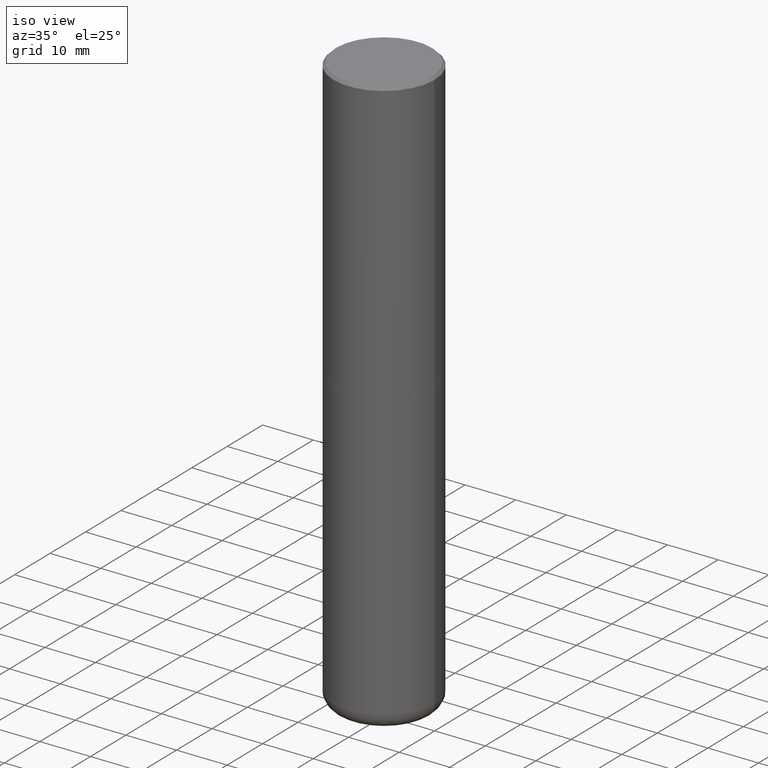
[diagram: clean part render]
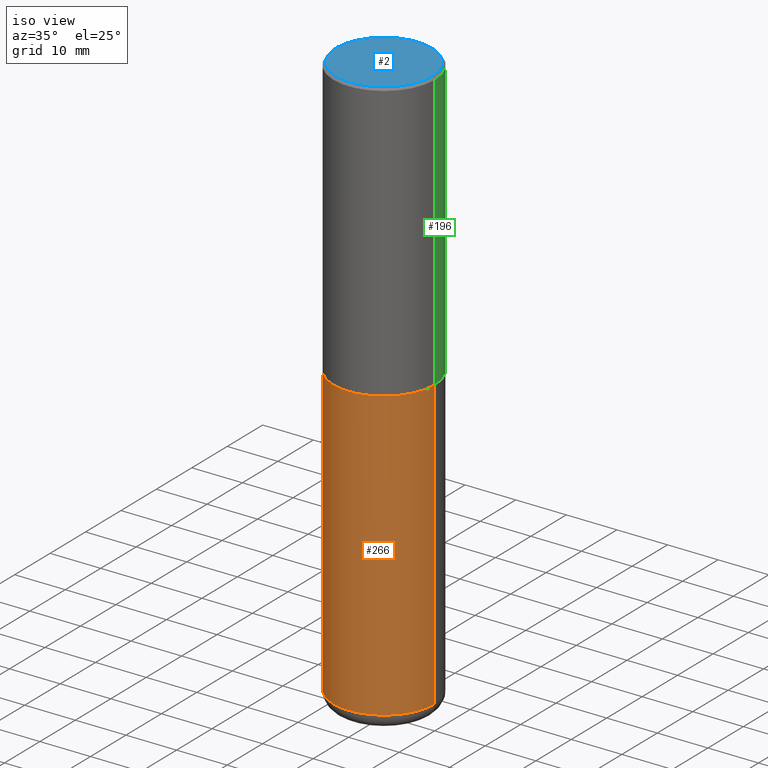
[diagram: same view with three faces highlighted in distinct colors, each labeled with its STEP entity id]
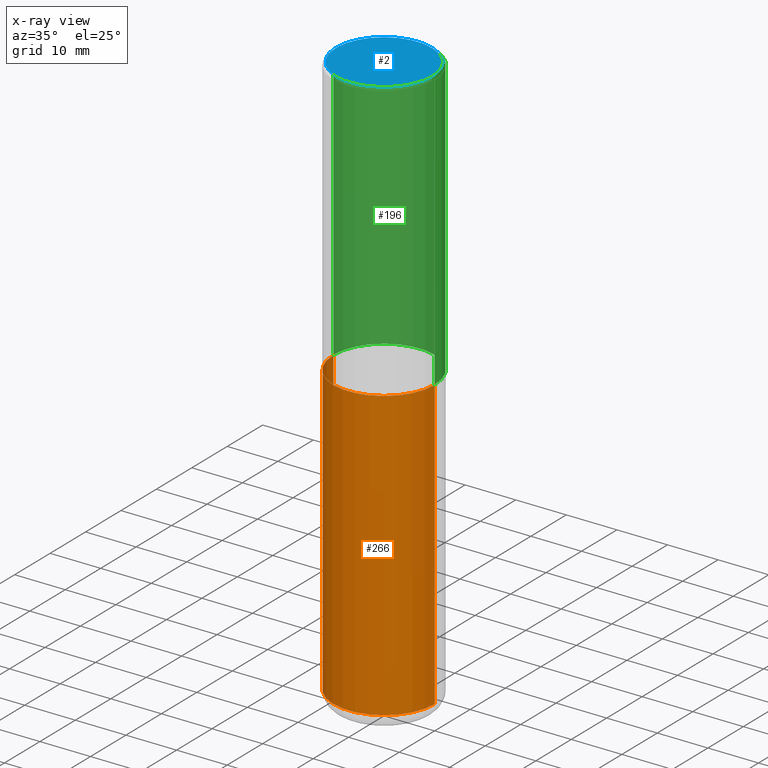
[diagram: x-ray of the same camera — body ghosted, the three highlighted faces saturated]
A machine part, iso view with three faces highlighted in distinct colors.
The next image is the same camera in x-ray (body ghosted, the three faces saturated) — at least one of them is partly hidden behind the body in this view.
Their STEP definitions:

[orange] entity #266 — the highlighted cylindrical surface (partial cylindrical patch) has radius 10 mm, axis along (-0, 0, 1).
#18 = DIRECTION ( 'NONE',  ( -2.445468806185136877E-29, 3.491481338843145188E-15, 1.000000000000000000 ) ) ;
#21 = FACE_OUTER_BOUND ( 'NONE', #300, .T. ) ;
#81 = CARTESIAN_POINT ( 'NONE',  ( 5.295418152913293224E-29, -7.560453691130945845E-15, -2.165399999999999547 ) ) ;
#83 = ORIENTED_EDGE ( 'NONE', *, *, #356, .T. ) ;
#88 = ORIENTED_EDGE ( 'NONE', *, *, #131, .F. ) ;
#121 = DIRECTION ( 'NONE',  ( -2.445468806185136597E-29, 3.491481338843145583E-15, 1.000000000000000000 ) ) ;
#130 = LINE ( 'NONE', #275, #141 ) ;
#131 = EDGE_CURVE ( 'NONE', #152, #272, #130, .T. ) ;
#134 = CIRCLE ( 'NONE', #404, 0.3937000000000000499 ) ;
#141 = VECTOR ( 'NONE', #18, 39.37007874015748143 ) ;
#149 = LINE ( 'NONE', #286, #322 ) ;
#152 = VERTEX_POINT ( 'NONE', #205 ) ;
#167 = ORIENTED_EDGE ( 'NONE', *, *, #304, .F. ) ;
#189 = EDGE_CURVE ( 'NONE', #152, #298, #271, .T. ) ;
#205 = CARTESIAN_POINT ( 'NONE',  ( -0.3936999999999998279, -1.259828021294133576E-14, -4.409499999999999531 ) ) ;
#264 = AXIS2_PLACEMENT_3D ( 'NONE', #408, #379, #348 ) ;
#266 = ADVANCED_FACE ( 'NONE', ( #21 ), #351, .T. ) ;
#271 = CIRCLE ( 'NONE', #284, 0.3936999999999999389 ) ;
#272 = VERTEX_POINT ( 'NONE', #282 ) ;
#275 = CARTESIAN_POINT ( 'NONE',  ( -0.3936999999999999389, 2.797406750687513998E-15, -1.936584745033356455E-29 ) ) ;
#277 = DIRECTION ( 'NONE',  ( 1.000000000000000000, -6.982962677686265133E-15, 0.000000000000000000 ) ) ;
#282 = CARTESIAN_POINT ( 'NONE',  ( -0.3937000000000000499, -8.680663576692383017E-15, -2.165399999999999547 ) ) ;
#284 = AXIS2_PLACEMENT_3D ( 'NONE', #402, #370, #277 ) ;
#286 = CARTESIAN_POINT ( 'NONE',  ( 0.3936999999999999389, -2.749192406205082822E-15, 1.919750796630859611E-29 ) ) ;
#298 = VERTEX_POINT ( 'NONE', #377 ) ;
#300 = EDGE_LOOP ( 'NONE', ( #88, #393, #83, #167 ) ) ;
#304 = EDGE_CURVE ( 'NONE', #272, #363, #134, .T. ) ;
#322 = VECTOR ( 'NONE', #415, 39.37007874015748143 ) ;
#348 = DIRECTION ( 'NONE',  ( 1.000000000000000000, -6.982962677686266711E-15, 4.876176775795935793E-29 ) ) ;
#351 = CYLINDRICAL_SURFACE ( 'NONE', #264, 0.3936999999999999389 ) ;
#356 = EDGE_CURVE ( 'NONE', #298, #363, #149, .T. ) ;
#363 = VERTEX_POINT ( 'NONE', #381 ) ;
#370 = DIRECTION ( 'NONE',  ( -2.445468806185136597E-29, 3.491481338843145583E-15, 1.000000000000000000 ) ) ;
#374 = DIRECTION ( 'NONE',  ( 1.000000000000000000, -6.982962677686265133E-15, 0.000000000000000000 ) ) ;
#377 = CARTESIAN_POINT ( 'NONE',  ( 0.3936999999999998279, -1.814487936983393140E-14, -4.409499999999999531 ) ) ;
#379 = DIRECTION ( 'NONE',  ( -2.445468806185136597E-29, 3.491481338843145583E-15, 1.000000000000000000 ) ) ;
#381 = CARTESIAN_POINT ( 'NONE',  ( 0.3937000000000000499, -1.030964609733602906E-14, -2.165399999999999547 ) ) ;
#393 = ORIENTED_EDGE ( 'NONE', *, *, #189, .T. ) ;
#402 = CARTESIAN_POINT ( 'NONE',  ( 1.078329470087335798E-28, -1.539568696362884818E-14, -4.409499999999999531 ) ) ;
#404 = AXIS2_PLACEMENT_3D ( 'NONE', #81, #121, #374 ) ;
#408 = CARTESIAN_POINT ( 'NONE',  ( 0.000000000000000000, 0.000000000000000000, 0.000000000000000000 ) ) ;
#415 = DIRECTION ( 'NONE',  ( -2.445468806185136877E-29, 3.491481338843145188E-15, 1.000000000000000000 ) ) ;

[blue] entity #2 — the highlighted planar face has unit normal (0, -0, -1).
#2 = ADVANCED_FACE ( 'NONE', ( #394 ), #97, .F. ) ;
#13 = CARTESIAN_POINT ( 'NONE',  ( 0.3736999999999999211, -2.667287895133367964E-15, 2.262311619753402158E-16 ) ) ;
#48 = CIRCLE ( 'NONE', #412, 0.3736999999999999211 ) ;
#51 = CARTESIAN_POINT ( 'NONE',  ( 2.609533152651356620E-15, 0.3736999999999999211, -1.191650995338022328E-15 ) ) ;
#87 = VERTEX_POINT ( 'NONE', #13 ) ;
#93 = EDGE_LOOP ( 'NONE', ( #127, #268 ) ) ;
#97 = PLANE ( 'NONE',  #171 ) ;
#108 = CARTESIAN_POINT ( 'NONE',  ( -5.532412495976664402E-45, 7.898818803016371119E-31, 2.262311619753217762E-16 ) ) ;
#127 = ORIENTED_EDGE ( 'NONE', *, *, #318, .T. ) ;
#171 = AXIS2_PLACEMENT_3D ( 'NONE', #51, #197, #212 ) ;
#179 = EDGE_CURVE ( 'NONE', #87, #388, #218, .T. ) ;
#184 = CARTESIAN_POINT ( 'NONE',  ( -5.532412495976664402E-45, 7.898818803016371119E-31, 2.262311619753217762E-16 ) ) ;
#197 = DIRECTION ( 'NONE',  ( 2.438088387897960049E-29, -3.491481338843145188E-15, -1.000000000000000000 ) ) ;
#204 = AXIS2_PLACEMENT_3D ( 'NONE', #108, #312, #396 ) ;
#206 = CARTESIAN_POINT ( 'NONE',  ( -0.3736999999999999211, 2.644447966039789453E-15, 2.262311619753034352E-16 ) ) ;
#212 = DIRECTION ( 'NONE',  ( -1.000000000000000000, 6.982962677686265922E-15, -4.876176775795935793E-29 ) ) ;
#218 = CIRCLE ( 'NONE', #204, 0.3736999999999999211 ) ;
#268 = ORIENTED_EDGE ( 'NONE', *, *, #179, .T. ) ;
#312 = DIRECTION ( 'NONE',  ( -2.445468806185136597E-29, 3.491481338843145583E-15, 1.000000000000000000 ) ) ;
#318 = EDGE_CURVE ( 'NONE', #388, #87, #48, .T. ) ;
#345 = DIRECTION ( 'NONE',  ( 1.000000000000000000, -6.982962677686266711E-15, 4.877734241229876808E-29 ) ) ;
#349 = DIRECTION ( 'NONE',  ( -2.445468806185136597E-29, 3.491481338843145583E-15, 1.000000000000000000 ) ) ;
#388 = VERTEX_POINT ( 'NONE', #206 ) ;
#394 = FACE_OUTER_BOUND ( 'NONE', #93, .T. ) ;
#396 = DIRECTION ( 'NONE',  ( 1.000000000000000000, -6.982962677686266711E-15, 4.877734241229876808E-29 ) ) ;
#412 = AXIS2_PLACEMENT_3D ( 'NONE', #184, #349, #345 ) ;

[green] entity #196 — the highlighted cylindrical surface (partial cylindrical patch) has radius 10 mm, axis along (-0, 0, 1).
#1 = DIRECTION ( 'NONE',  ( -2.445468806185136597E-29, 3.491481338843145583E-15, 1.000000000000000000 ) ) ;
#5 = VERTEX_POINT ( 'NONE', #38 ) ;
#7 = DIRECTION ( 'NONE',  ( 1.000000000000000000, -6.982962677686269077E-15, 0.000000000000000000 ) ) ;
#31 = CIRCLE ( 'NONE', #278, 0.3937000000000001054 ) ;
#38 = CARTESIAN_POINT ( 'NONE',  ( 0.3937000000000002720, -1.030615461599718763E-14, -2.164399999999999658 ) ) ;
#46 = EDGE_CURVE ( 'NONE', #5, #91, #74, .T. ) ;
#47 = DIRECTION ( 'NONE',  ( -2.445468806185136597E-29, 3.491481338843145583E-15, 1.000000000000000000 ) ) ;
#54 = DIRECTION ( 'NONE',  ( 1.000000000000000000, -6.982962677686266711E-15, 4.876176775795935793E-29 ) ) ;
#62 = ORIENTED_EDGE ( 'NONE', *, *, #46, .F. ) ;
#74 = LINE ( 'NONE', #136, #148 ) ;
#75 = CARTESIAN_POINT ( 'NONE',  ( 0.3937000000000001054, -2.770807688499516128E-15, -0.02000000000000008715 ) ) ;
#91 = VERTEX_POINT ( 'NONE', #75 ) ;
#107 = FACE_OUTER_BOUND ( 'NONE', #161, .T. ) ;
#111 = EDGE_CURVE ( 'NONE', #328, #191, #280, .T. ) ;
#122 = ORIENTED_EDGE ( 'NONE', *, *, #111, .T. ) ;
#136 = CARTESIAN_POINT ( 'NONE',  ( 0.3937000000000002164, -2.749192406205084794E-15, 1.919750796630861012E-29 ) ) ;
#148 = VECTOR ( 'NONE', #307, 39.37007874015748143 ) ;
#161 = EDGE_LOOP ( 'NONE', ( #185, #122, #228, #62 ) ) ;
#177 = CARTESIAN_POINT ( 'NONE',  ( -0.3937000000000001054, 2.679362779428220707E-15, -0.02000000000000008715 ) ) ;
#185 = ORIENTED_EDGE ( 'NONE', *, *, #376, .T. ) ;
#188 = CARTESIAN_POINT ( 'NONE',  ( -0.3937000000000002720, -1.015989167596965718E-15, -2.164399999999999658 ) ) ;
#191 = VERTEX_POINT ( 'NONE', #177 ) ;
#196 = ADVANCED_FACE ( 'NONE', ( #107 ), #250, .T. ) ;
#199 = CARTESIAN_POINT ( 'NONE',  ( 5.292972684107107621E-29, -7.556962209792102838E-15, -2.164399999999999658 ) ) ;
#210 = CIRCLE ( 'NONE', #294, 0.3937000000000002720 ) ;
#228 = ORIENTED_EDGE ( 'NONE', *, *, #232, .F. ) ;
#232 = EDGE_CURVE ( 'NONE', #91, #191, #31, .T. ) ;
#246 = DIRECTION ( 'NONE',  ( -2.445468806185136877E-29, 3.491481338843145188E-15, 1.000000000000000000 ) ) ;
#250 = CYLINDRICAL_SURFACE ( 'NONE', #301, 0.3937000000000002164 ) ;
#278 = AXIS2_PLACEMENT_3D ( 'NONE', #319, #47, #416 ) ;
#280 = LINE ( 'NONE', #316, #353 ) ;
#294 = AXIS2_PLACEMENT_3D ( 'NONE', #199, #1, #7 ) ;
#301 = AXIS2_PLACEMENT_3D ( 'NONE', #372, #335, #54 ) ;
#307 = DIRECTION ( 'NONE',  ( -2.445468806185136877E-29, 3.491481338843145188E-15, 1.000000000000000000 ) ) ;
#316 = CARTESIAN_POINT ( 'NONE',  ( -0.3937000000000002164, 2.797406750687515970E-15, -1.936584745033357576E-29 ) ) ;
#319 = CARTESIAN_POINT ( 'NONE',  ( 4.890937612370294178E-31, -6.982962677686321191E-17, -0.02000000000000008715 ) ) ;
#328 = VERTEX_POINT ( 'NONE', #188 ) ;
#335 = DIRECTION ( 'NONE',  ( -2.445468806185136597E-29, 3.491481338843145583E-15, 1.000000000000000000 ) ) ;
#353 = VECTOR ( 'NONE', #246, 39.37007874015748143 ) ;
#372 = CARTESIAN_POINT ( 'NONE',  ( 0.000000000000000000, 0.000000000000000000, 0.000000000000000000 ) ) ;
#376 = EDGE_CURVE ( 'NONE', #5, #328, #210, .T. ) ;
#416 = DIRECTION ( 'NONE',  ( 1.000000000000000000, -6.982962677686266711E-15, 0.000000000000000000 ) ) ;